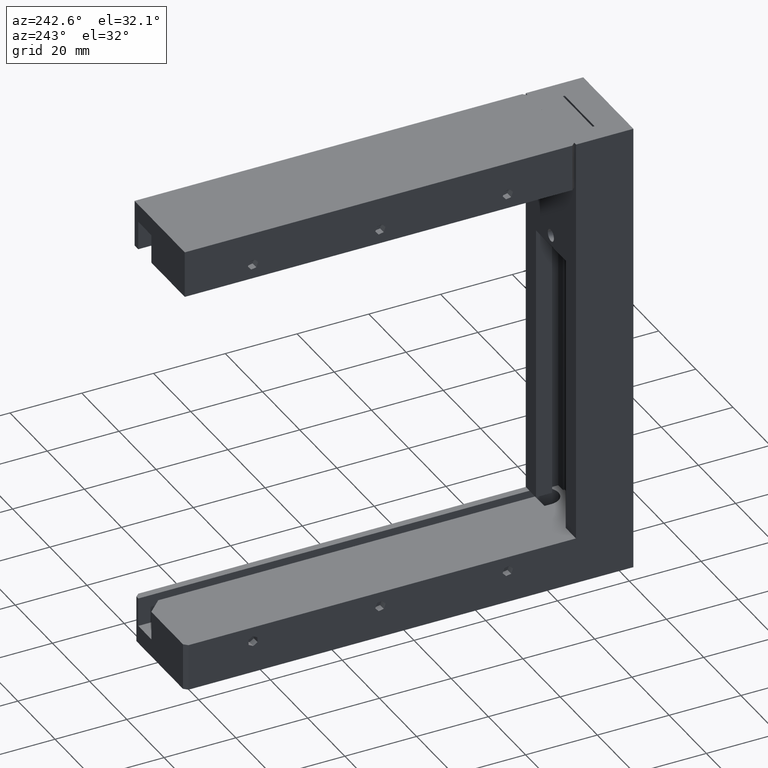
[diagram: clean part render]
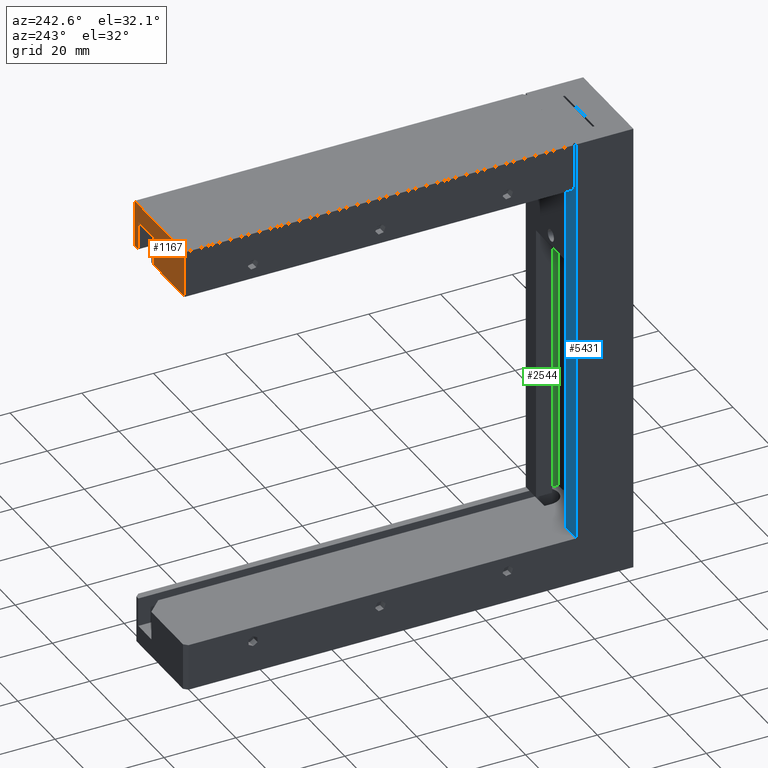
[diagram: same view with three faces highlighted in distinct colors, each labeled with its STEP entity id]
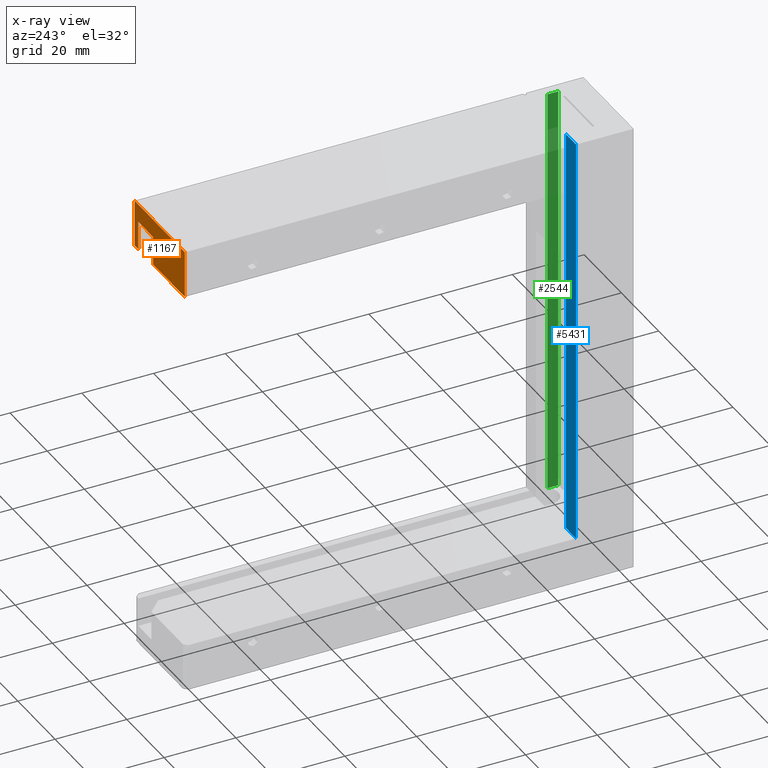
[diagram: x-ray of the same camera — body ghosted, the three highlighted faces saturated]
A machine part, auxiliary view with three faces highlighted in distinct colors.
The next image is the same camera in x-ray (body ghosted, the three faces saturated) — at least one of them is partly hidden behind the body in this view.
Their STEP definitions:

[orange] entity #1167 — the highlighted planar face has unit normal (-0, -1, 0).
#86 = DIRECTION ( 'NONE',  ( 1.000000000000000000, -6.285575761803448100E-016, -3.941291737419288400E-015 ) ) ;
#200 = LINE ( 'NONE', #4742, #3221 ) ;
#375 = VECTOR ( 'NONE', #8164, 1000.000000000000000 ) ;
#433 = EDGE_CURVE ( 'NONE', #1673, #6375, #6749, .T. ) ;
#519 = ORIENTED_EDGE ( 'NONE', *, *, #1261, .F. ) ;
#655 = LINE ( 'NONE', #5525, #375 ) ;
#752 = CARTESIAN_POINT ( 'NONE',  ( -18.56811989100795700, 123.1198910081733800, 44.50000000000001400 ) ) ;
#806 = ORIENTED_EDGE ( 'NONE', *, *, #7214, .F. ) ;
#937 = VERTEX_POINT ( 'NONE', #4484 ) ;
#993 = PLANE ( 'NONE',  #5573 ) ;
#1167 = ADVANCED_FACE ( 'NONE', ( #4835 ), #993, .F. ) ;
#1261 = EDGE_CURVE ( 'NONE', #7656, #6973, #655, .T. ) ;
#1467 = LINE ( 'NONE', #2759, #7889 ) ;
#1584 = VECTOR ( 'NONE', #2538, 1000.000000000000000 ) ;
#1673 = VERTEX_POINT ( 'NONE', #4330 ) ;
#1880 = DIRECTION ( 'NONE',  ( 1.000000000000000000, -6.285575761803448100E-016, -3.941291737419288400E-015 ) ) ;
#2022 = CARTESIAN_POINT ( 'NONE',  ( 6.431880108992007000, 123.1198910081733500, 52.50000000000001400 ) ) ;
#2322 = ORIENTED_EDGE ( 'NONE', *, *, #7260, .T. ) ;
#2370 = EDGE_CURVE ( 'NONE', #5158, #1673, #6652, .T. ) ;
#2459 = ORIENTED_EDGE ( 'NONE', *, *, #4206, .T. ) ;
#2501 = DIRECTION ( 'NONE',  ( -3.885780586188029700E-015, -1.386311902618870300E-030, 1.000000000000000000 ) ) ;
#2538 = DIRECTION ( 'NONE',  ( 3.885780586188030500E-015, 1.386311902618868200E-030, -1.000000000000000000 ) ) ;
#2721 = ORIENTED_EDGE ( 'NONE', *, *, #4377, .T. ) ;
#2727 = DIRECTION ( 'NONE',  ( 3.885780586188030500E-015, 1.386311902618868200E-030, -1.000000000000000000 ) ) ;
#2759 = CARTESIAN_POINT ( 'NONE',  ( -18.56811989100798100, 123.1198910081733800, 57.50000000000000700 ) ) ;
#3221 = VECTOR ( 'NONE', #8011, 1000.000000000000000 ) ;
#3224 = DIRECTION ( 'NONE',  ( 1.000000000000000000, -6.285575761803448100E-016, -3.941291737419288400E-015 ) ) ;
#3322 = ORIENTED_EDGE ( 'NONE', *, *, #8170, .F. ) ;
#3528 = CARTESIAN_POINT ( 'NONE',  ( -18.56811989100795700, 123.1198910081733800, 44.50000000000001400 ) ) ;
#3776 = CARTESIAN_POINT ( 'NONE',  ( 8.431880108992022100, 123.1198910081733500, 57.50000000000000700 ) ) ;
#3888 = CARTESIAN_POINT ( 'NONE',  ( 8.431880108992075400, 123.1198910081733500, 44.50000000000001400 ) ) ;
#4184 = DIRECTION ( 'NONE',  ( -6.285575761803448100E-016, -1.000000000000000000, 3.774822690999156000E-030 ) ) ;
#4206 = EDGE_CURVE ( 'NONE', #7656, #5147, #4971, .T. ) ;
#4330 = CARTESIAN_POINT ( 'NONE',  ( 8.431880108992075400, 123.1198910081733500, 44.50000000000001400 ) ) ;
#4374 = EDGE_LOOP ( 'NONE', ( #7680, #3322, #519, #2459, #806, #2721, #2322, #4379 ) ) ;
#4377 = EDGE_CURVE ( 'NONE', #937, #5497, #200, .T. ) ;
#4379 = ORIENTED_EDGE ( 'NONE', *, *, #433, .F. ) ;
#4484 = CARTESIAN_POINT ( 'NONE',  ( -18.56811989100795700, 123.1198910081733800, 44.50000000000001400 ) ) ;
#4734 = CARTESIAN_POINT ( 'NONE',  ( -18.56811989100798100, 123.1198910081733800, 57.50000000000000700 ) ) ;
#4742 = CARTESIAN_POINT ( 'NONE',  ( -18.56811989100795700, 123.1198910081733800, 44.50000000000001400 ) ) ;
#4835 = FACE_OUTER_BOUND ( 'NONE', #4374, .T. ) ;
#4971 = LINE ( 'NONE', #5805, #1584 ) ;
#5034 = VECTOR ( 'NONE', #2727, 1000.000000000000000 ) ;
#5147 = VERTEX_POINT ( 'NONE', #6998 ) ;
#5158 = VERTEX_POINT ( 'NONE', #7634 ) ;
#5497 = VERTEX_POINT ( 'NONE', #4734 ) ;
#5525 = CARTESIAN_POINT ( 'NONE',  ( 6.431880108992007000, 123.1198910081733500, 52.50000000000001400 ) ) ;
#5536 = VECTOR ( 'NONE', #2501, 1000.000000000000000 ) ;
#5561 = LINE ( 'NONE', #2022, #5034 ) ;
#5573 = AXIS2_PLACEMENT_3D ( 'NONE', #3528, #4184, #8082 ) ;
#5661 = CARTESIAN_POINT ( 'NONE',  ( 6.431880108992007000, 123.1198910081733500, 52.50000000000001400 ) ) ;
#5664 = CARTESIAN_POINT ( 'NONE',  ( -18.56811989100795700, 123.1198910081733800, 44.50000000000001400 ) ) ;
#5805 = CARTESIAN_POINT ( 'NONE',  ( -1.568119891007983200, 123.1198910081733800, 52.50000000000001400 ) ) ;
#6375 = VERTEX_POINT ( 'NONE', #3776 ) ;
#6601 = CARTESIAN_POINT ( 'NONE',  ( -1.568119891007983200, 123.1198910081733800, 52.50000000000001400 ) ) ;
#6652 = LINE ( 'NONE', #5664, #8239 ) ;
#6749 = LINE ( 'NONE', #3888, #5536 ) ;
#6973 = VERTEX_POINT ( 'NONE', #5661 ) ;
#6998 = CARTESIAN_POINT ( 'NONE',  ( -1.568119891007953000, 123.1198910081733800, 44.50000000000001400 ) ) ;
#7186 = VECTOR ( 'NONE', #86, 1000.000000000000000 ) ;
#7214 = EDGE_CURVE ( 'NONE', #937, #5147, #7284, .T. ) ;
#7260 = EDGE_CURVE ( 'NONE', #5497, #6375, #1467, .T. ) ;
#7284 = LINE ( 'NONE', #752, #7186 ) ;
#7634 = CARTESIAN_POINT ( 'NONE',  ( 6.431880108992047000, 123.1198910081733500, 44.50000000000001400 ) ) ;
#7656 = VERTEX_POINT ( 'NONE', #6601 ) ;
#7680 = ORIENTED_EDGE ( 'NONE', *, *, #2370, .F. ) ;
#7889 = VECTOR ( 'NONE', #3224, 1000.000000000000000 ) ;
#8011 = DIRECTION ( 'NONE',  ( -3.885780586188029700E-015, -1.386311902618870300E-030, 1.000000000000000000 ) ) ;
#8082 = DIRECTION ( 'NONE',  ( -1.000000000000000000, 6.285575761803448100E-016, 3.941291737419288400E-015 ) ) ;
#8164 = DIRECTION ( 'NONE',  ( 1.000000000000000000, -6.285575761803448100E-016, -3.941291737419288400E-015 ) ) ;
#8170 = EDGE_CURVE ( 'NONE', #6973, #5158, #5561, .T. ) ;
#8239 = VECTOR ( 'NONE', #1880, 1000.000000000000000 ) ;

[blue] entity #5431 — the highlighted planar face has unit normal (0, -1, 0).
#129 = CARTESIAN_POINT ( 'NONE',  ( -13.06811989100817300, 14.11989100817438500, -57.50000000000000000 ) ) ;
#201 = VERTEX_POINT ( 'NONE', #4906 ) ;
#446 = CARTESIAN_POINT ( 'NONE',  ( -13.06811989100817300, 14.11989100817438500, 57.50000000000000000 ) ) ;
#453 = VERTEX_POINT ( 'NONE', #1843 ) ;
#966 = VECTOR ( 'NONE', #5895, 1000.000000000000000 ) ;
#1154 = ORIENTED_EDGE ( 'NONE', *, *, #7107, .F. ) ;
#1412 = ORIENTED_EDGE ( 'NONE', *, *, #7528, .F. ) ;
#1414 = CARTESIAN_POINT ( 'NONE',  ( -18.56811989100817000, 14.11989100817438500, 57.50000000000000000 ) ) ;
#1811 = VECTOR ( 'NONE', #2798, 1000.000000000000000 ) ;
#1843 = CARTESIAN_POINT ( 'NONE',  ( -13.06811989100817300, 14.11989100817438500, 57.50000000000000000 ) ) ;
#2196 = DIRECTION ( 'NONE',  ( 0.0000000000000000000, -0.0000000000000000000, -1.000000000000000000 ) ) ;
#2268 = ORIENTED_EDGE ( 'NONE', *, *, #4325, .T. ) ;
#2274 = CARTESIAN_POINT ( 'NONE',  ( -18.56811989100817000, 14.11989100817438500, 57.50000000000000000 ) ) ;
#2321 = AXIS2_PLACEMENT_3D ( 'NONE', #5291, #5371, #2196 ) ;
#2330 = EDGE_CURVE ( 'NONE', #453, #6420, #6164, .T. ) ;
#2717 = LINE ( 'NONE', #1414, #966 ) ;
#2798 = DIRECTION ( 'NONE',  ( -0.0000000000000000000, -0.0000000000000000000, -1.000000000000000000 ) ) ;
#3319 = PLANE ( 'NONE',  #2321 ) ;
#3379 = VECTOR ( 'NONE', #7379, 1000.000000000000000 ) ;
#3395 = ORIENTED_EDGE ( 'NONE', *, *, #2330, .T. ) ;
#3843 = FACE_OUTER_BOUND ( 'NONE', #5413, .T. ) ;
#3932 = LINE ( 'NONE', #446, #3379 ) ;
#4325 = EDGE_CURVE ( 'NONE', #6420, #201, #7704, .T. ) ;
#4550 = DIRECTION ( 'NONE',  ( -1.000000000000000000, 0.0000000000000000000, 0.0000000000000000000 ) ) ;
#4906 = CARTESIAN_POINT ( 'NONE',  ( -18.56811989100817000, 14.11989100817438500, -57.50000000000000000 ) ) ;
#5291 = CARTESIAN_POINT ( 'NONE',  ( -13.06811989100817300, 14.11989100817438500, 57.50000000000000000 ) ) ;
#5371 = DIRECTION ( 'NONE',  ( 0.0000000000000000000, -1.000000000000000000, 0.0000000000000000000 ) ) ;
#5413 = EDGE_LOOP ( 'NONE', ( #2268, #1412, #1154, #3395 ) ) ;
#5431 = ADVANCED_FACE ( 'NONE', ( #3843 ), #3319, .F. ) ;
#5436 = CARTESIAN_POINT ( 'NONE',  ( -13.06811989100817300, 14.11989100817438500, 57.50000000000000000 ) ) ;
#5712 = VERTEX_POINT ( 'NONE', #2274 ) ;
#5895 = DIRECTION ( 'NONE',  ( -0.0000000000000000000, -0.0000000000000000000, -1.000000000000000000 ) ) ;
#6164 = LINE ( 'NONE', #5436, #1811 ) ;
#6420 = VERTEX_POINT ( 'NONE', #7870 ) ;
#6612 = VECTOR ( 'NONE', #4550, 1000.000000000000000 ) ;
#7107 = EDGE_CURVE ( 'NONE', #453, #5712, #3932, .T. ) ;
#7379 = DIRECTION ( 'NONE',  ( -1.000000000000000000, 0.0000000000000000000, 0.0000000000000000000 ) ) ;
#7528 = EDGE_CURVE ( 'NONE', #5712, #201, #2717, .T. ) ;
#7704 = LINE ( 'NONE', #129, #6612 ) ;
#7870 = CARTESIAN_POINT ( 'NONE',  ( -13.06811989100817300, 14.11989100817438500, -57.50000000000000000 ) ) ;

[green] entity #2544 — the highlighted planar face has unit normal (1, 0, 0).
#6 = EDGE_CURVE ( 'NONE', #1192, #5181, #2896, .T. ) ;
#21 = VECTOR ( 'NONE', #4980, 1000.000000000000000 ) ;
#39 = CARTESIAN_POINT ( 'NONE',  ( 5.431880108991827600, 6.619891008174385600, -57.50000000000000000 ) ) ;
#133 = FACE_OUTER_BOUND ( 'NONE', #1966, .T. ) ;
#604 = AXIS2_PLACEMENT_3D ( 'NONE', #6204, #5593, #2319 ) ;
#629 = CARTESIAN_POINT ( 'NONE',  ( 5.431880108991827600, 6.619891008174385600, 57.50000000000000000 ) ) ;
#835 = CARTESIAN_POINT ( 'NONE',  ( 5.431880108991827600, 9.619891008174384700, 57.50000000000000000 ) ) ;
#1192 = VERTEX_POINT ( 'NONE', #8053 ) ;
#1386 = LINE ( 'NONE', #2348, #8012 ) ;
#1592 = ORIENTED_EDGE ( 'NONE', *, *, #3627, .F. ) ;
#1723 = PLANE ( 'NONE',  #604 ) ;
#1753 = CARTESIAN_POINT ( 'NONE',  ( 5.431880108991827600, 6.619891008174385600, 57.50000000000000000 ) ) ;
#1879 = VERTEX_POINT ( 'NONE', #835 ) ;
#1966 = EDGE_LOOP ( 'NONE', ( #2958, #1592, #6515, #7431 ) ) ;
#2121 = CARTESIAN_POINT ( 'NONE',  ( 5.431880108991827600, 6.619891008174385600, -57.50000000000000000 ) ) ;
#2258 = CARTESIAN_POINT ( 'NONE',  ( 5.431880108991827600, 6.619891008174385600, 57.50000000000000000 ) ) ;
#2319 = DIRECTION ( 'NONE',  ( 0.0000000000000000000, 0.0000000000000000000, -1.000000000000000000 ) ) ;
#2348 = CARTESIAN_POINT ( 'NONE',  ( 5.431880108991827600, 9.619891008174384700, 57.50000000000000000 ) ) ;
#2404 = EDGE_CURVE ( 'NONE', #1879, #4405, #2684, .T. ) ;
#2512 = DIRECTION ( 'NONE',  ( -0.0000000000000000000, -1.000000000000000000, -0.0000000000000000000 ) ) ;
#2544 = ADVANCED_FACE ( 'NONE', ( #133 ), #1723, .F. ) ;
#2684 = LINE ( 'NONE', #629, #2990 ) ;
#2896 = LINE ( 'NONE', #2121, #7848 ) ;
#2958 = ORIENTED_EDGE ( 'NONE', *, *, #6, .T. ) ;
#2990 = VECTOR ( 'NONE', #2512, 1000.000000000000000 ) ;
#3627 = EDGE_CURVE ( 'NONE', #4405, #5181, #8121, .T. ) ;
#4126 = DIRECTION ( 'NONE',  ( -0.0000000000000000000, -1.000000000000000000, -0.0000000000000000000 ) ) ;
#4405 = VERTEX_POINT ( 'NONE', #2258 ) ;
#4980 = DIRECTION ( 'NONE',  ( -0.0000000000000000000, -0.0000000000000000000, -1.000000000000000000 ) ) ;
#5181 = VERTEX_POINT ( 'NONE', #39 ) ;
#5593 = DIRECTION ( 'NONE',  ( 1.000000000000000000, 0.0000000000000000000, 0.0000000000000000000 ) ) ;
#6204 = CARTESIAN_POINT ( 'NONE',  ( 5.431880108991827600, 6.619891008174385600, 57.50000000000000000 ) ) ;
#6515 = ORIENTED_EDGE ( 'NONE', *, *, #2404, .F. ) ;
#6699 = EDGE_CURVE ( 'NONE', #1879, #1192, #1386, .T. ) ;
#7431 = ORIENTED_EDGE ( 'NONE', *, *, #6699, .T. ) ;
#7481 = DIRECTION ( 'NONE',  ( -0.0000000000000000000, -0.0000000000000000000, -1.000000000000000000 ) ) ;
#7848 = VECTOR ( 'NONE', #4126, 1000.000000000000000 ) ;
#8012 = VECTOR ( 'NONE', #7481, 1000.000000000000000 ) ;
#8053 = CARTESIAN_POINT ( 'NONE',  ( 5.431880108991827600, 9.619891008174384700, -57.50000000000000000 ) ) ;
#8121 = LINE ( 'NONE', #1753, #21 ) ;